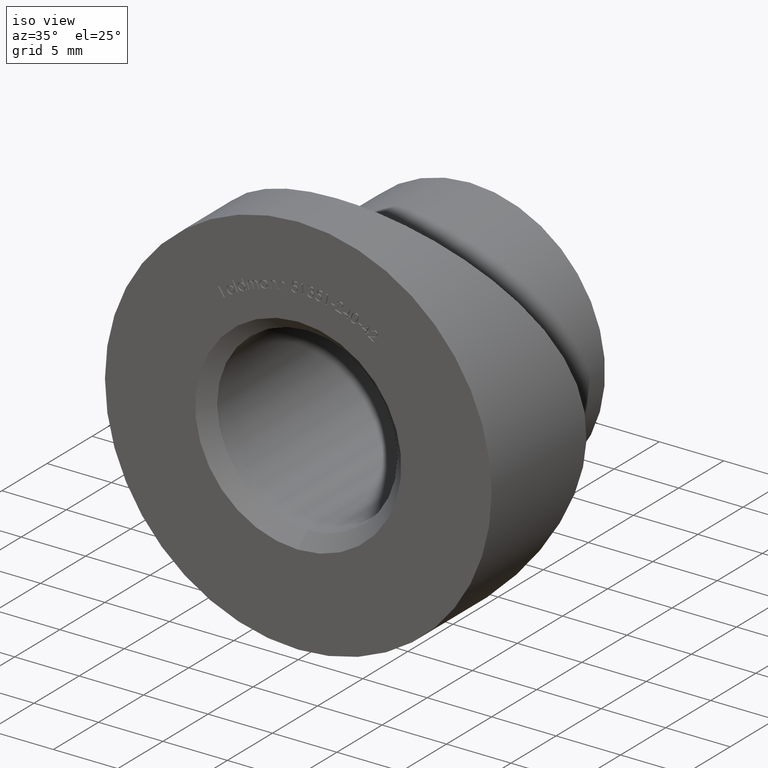
[diagram: clean part render]
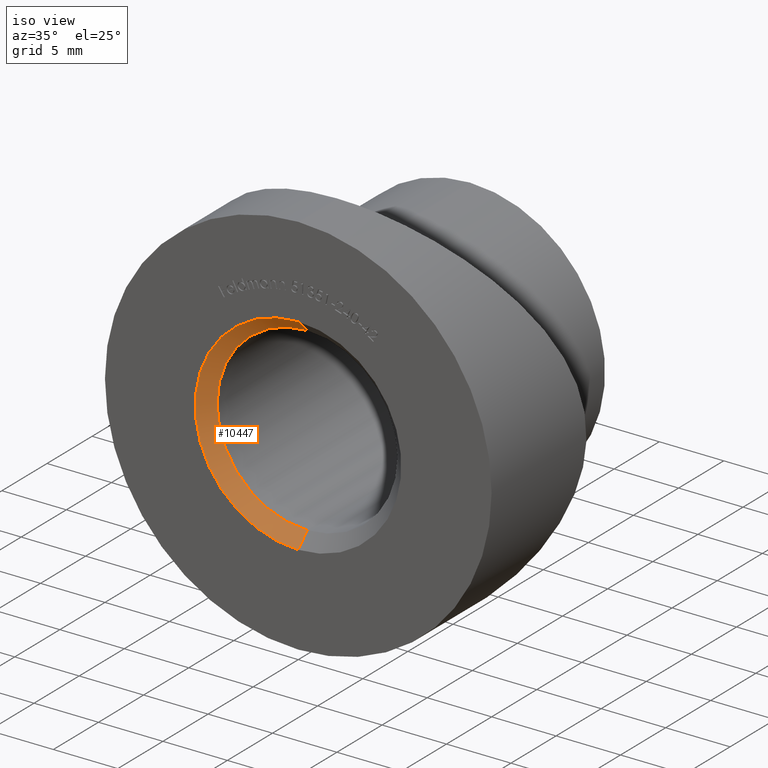
[diagram: same view with one face highlighted and labeled with its STEP entity id]
A machine part, iso view. The second image highlights one B-rep face of the part: STEP entity #10447.
In plain terms, the highlighted conical surface has half-angle 45 deg.
Its self-contained STEP definition (entity closure, byte-faithful):
#120 = VERTEX_POINT ( 'NONE', #7438 ) ;
#207 = AXIS2_PLACEMENT_3D ( 'NONE', #7492, #2174, #3114 ) ;
#318 = CIRCLE ( 'NONE', #207, 6.999999999999992900 ) ;
#1006 = CARTESIAN_POINT ( 'NONE',  ( 0.0000000000000000000, 0.0000000000000000000, 0.0000000000000000000 ) ) ;
#1115 = DIRECTION ( 'NONE',  ( 8.659560562354913100E-017, -0.7071067811865490200, 0.7071067811865460200 ) ) ;
#1301 = VERTEX_POINT ( 'NONE', #10886 ) ;
#1927 = EDGE_CURVE ( 'NONE', #1301, #13008, #318, .T. ) ;
#2174 = DIRECTION ( 'NONE',  ( -0.0000000000000000000, -1.000000000000000000, -0.0000000000000000000 ) ) ;
#2550 = DIRECTION ( 'NONE',  ( 0.0000000000000000000, 1.000000000000000000, 0.0000000000000000000 ) ) ;
#3114 = DIRECTION ( 'NONE',  ( 0.0000000000000000000, 0.0000000000000000000, 1.000000000000000000 ) ) ;
#3806 = EDGE_CURVE ( 'NONE', #120, #8918, #4965, .T. ) ;
#3964 = CARTESIAN_POINT ( 'NONE',  ( 0.0000000000000000000, 0.0000000000000000000, -7.999999999999986700 ) ) ;
#4000 = LINE ( 'NONE', #3964, #5010 ) ;
#4281 = EDGE_CURVE ( 'NONE', #1301, #8918, #8272, .T. ) ;
#4285 = VECTOR ( 'NONE', #1115, 1000.000000000000100 ) ;
#4965 = CIRCLE ( 'NONE', #12460, 7.999999999999986700 ) ;
#5010 = VECTOR ( 'NONE', #12519, 1000.000000000000100 ) ;
#5177 = ORIENTED_EDGE ( 'NONE', *, *, #1927, .F. ) ;
#6172 = FACE_OUTER_BOUND ( 'NONE', #10974, .T. ) ;
#6242 = DIRECTION ( 'NONE',  ( -0.0000000000000000000, -1.000000000000000000, -0.0000000000000000000 ) ) ;
#7154 = CARTESIAN_POINT ( 'NONE',  ( 9.797174393178809900E-016, 0.0000000000000000000, 7.999999999999986700 ) ) ;
#7438 = CARTESIAN_POINT ( 'NONE',  ( 0.0000000000000000000, 0.0000000000000000000, -7.999999999999986700 ) ) ;
#7492 = CARTESIAN_POINT ( 'NONE',  ( 0.0000000000000000000, 0.9999999999999974500, 0.0000000000000000000 ) ) ;
#8162 = AXIS2_PLACEMENT_3D ( 'NONE', #1006, #6242, #9585 ) ;
#8272 = LINE ( 'NONE', #7154, #4285 ) ;
#8517 = CONICAL_SURFACE ( 'NONE', #8162, 7.999999999999986700, 0.7853981633974460600 ) ;
#8750 = CARTESIAN_POINT ( 'NONE',  ( 0.0000000000000000000, 0.0000000000000000000, 0.0000000000000000000 ) ) ;
#8918 = VERTEX_POINT ( 'NONE', #13587 ) ;
#9420 = ORIENTED_EDGE ( 'NONE', *, *, #11955, .F. ) ;
#9585 = DIRECTION ( 'NONE',  ( 0.0000000000000000000, 0.0000000000000000000, -1.000000000000000000 ) ) ;
#10447 = ADVANCED_FACE ( 'NONE', ( #6172 ), #8517, .F. ) ;
#10886 = CARTESIAN_POINT ( 'NONE',  ( 0.0000000000000000000, 0.9999999999999974500, 6.999999999999992900 ) ) ;
#10974 = EDGE_LOOP ( 'NONE', ( #5177, #13373, #12467, #9420 ) ) ;
#11955 = EDGE_CURVE ( 'NONE', #13008, #120, #4000, .T. ) ;
#12106 = CARTESIAN_POINT ( 'NONE',  ( 8.572527594031464300E-016, 0.9999999999999974500, -6.999999999999992900 ) ) ;
#12460 = AXIS2_PLACEMENT_3D ( 'NONE', #8750, #2550, #13141 ) ;
#12467 = ORIENTED_EDGE ( 'NONE', *, *, #3806, .F. ) ;
#12519 = DIRECTION ( 'NONE',  ( 0.0000000000000000000, -0.7071067811865490200, -0.7071067811865460200 ) ) ;
#13008 = VERTEX_POINT ( 'NONE', #12106 ) ;
#13141 = DIRECTION ( 'NONE',  ( 0.0000000000000000000, 0.0000000000000000000, 1.000000000000000000 ) ) ;
#13373 = ORIENTED_EDGE ( 'NONE', *, *, #4281, .T. ) ;
#13587 = CARTESIAN_POINT ( 'NONE',  ( 9.797174393178809900E-016, 0.0000000000000000000, 7.999999999999986700 ) ) ;